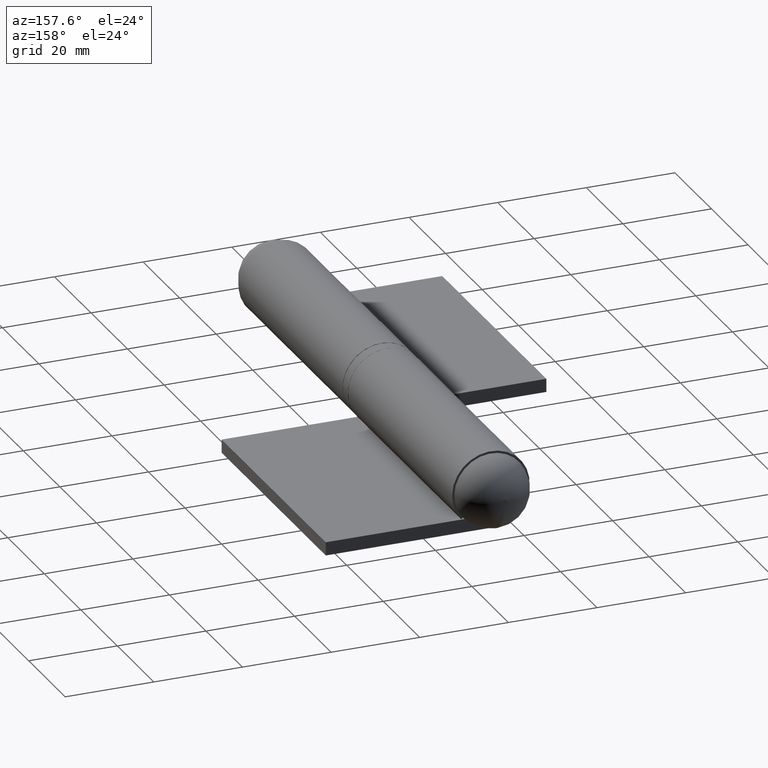
[diagram: clean part render]
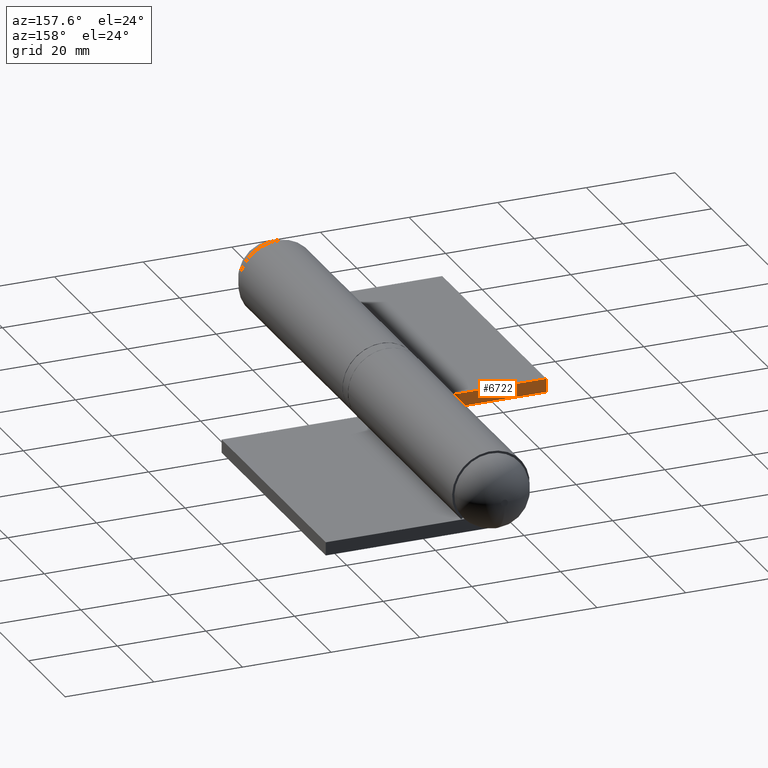
[diagram: same view with one face highlighted and labeled with its STEP entity id]
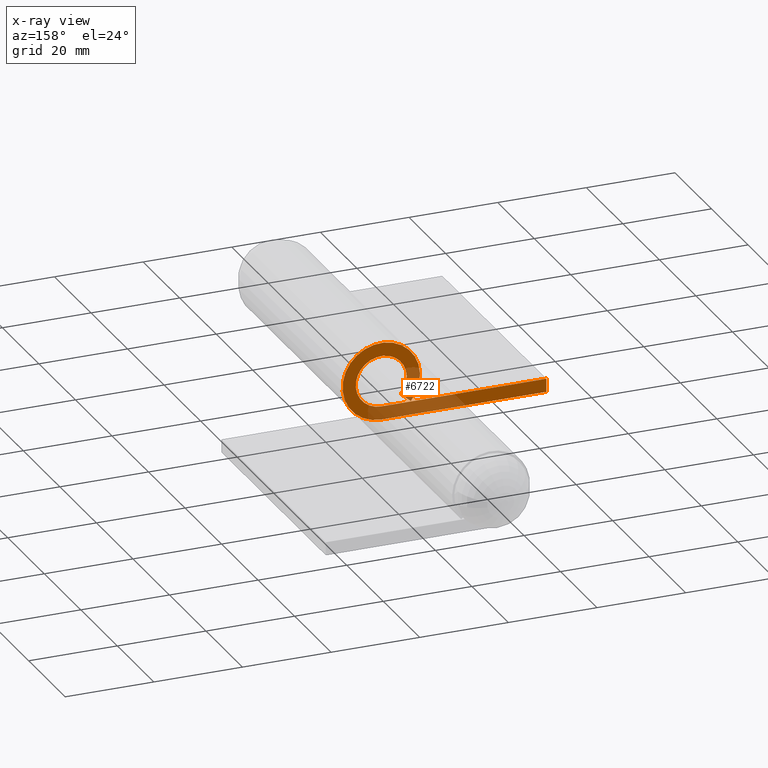
[diagram: x-ray of the same camera — body ghosted, the highlighted face saturated]
A machine part, auxiliary view. The second image highlights one B-rep face of the part: STEP entity #6722.
The next image is the same camera in x-ray: the body ghosted, the highlighted face saturated — about 36% of this face is hidden behind the body in this view.
In plain terms, the highlighted planar face has unit normal (0, -1, 0).
Its self-contained STEP definition (entity closure, byte-faithful):
#19 = CARTESIAN_POINT ( 'NONE',  ( 37.25000000000000000, -28.50000000000000000, -5.750000000000000888 ) ) ;
#136 = EDGE_CURVE ( 'NONE', #8474, #2322, #11101, .T. ) ;
#240 = CARTESIAN_POINT ( 'NONE',  ( 0.000000000000000000, -28.50000000000000000, -5.750000000000000888 ) ) ;
#604 = ORIENTED_EDGE ( 'NONE', *, *, #11133, .F. ) ;
#1010 = CARTESIAN_POINT ( 'NONE',  ( 37.25000000000000000, -28.50000000000000000, 0.000000000000000000 ) ) ;
#1012 = AXIS2_PLACEMENT_3D ( 'NONE', #9586, #4055, #4984 ) ;
#1359 = ORIENTED_EDGE ( 'NONE', *, *, #1768, .F. ) ;
#1442 = VERTEX_POINT ( 'NONE', #19 ) ;
#1687 = CARTESIAN_POINT ( 'NONE',  ( 0.000000000000000000, -28.50000000000000000, 0.000000000000000000 ) ) ;
#1732 = VERTEX_POINT ( 'NONE', #11921 ) ;
#1768 = EDGE_CURVE ( 'NONE', #1442, #10058, #7998, .T. ) ;
#1806 = DIRECTION ( 'NONE',  ( 0.000000000000000000, 1.000000000000000000, -0.000000000000000000 ) ) ;
#2322 = VERTEX_POINT ( 'NONE', #6609 ) ;
#2477 = EDGE_CURVE ( 'NONE', #1732, #10058, #10181, .T. ) ;
#2537 = ORIENTED_EDGE ( 'NONE', *, *, #136, .T. ) ;
#2905 = FACE_OUTER_BOUND ( 'NONE', #7953, .T. ) ;
#3043 = ORIENTED_EDGE ( 'NONE', *, *, #3715, .F. ) ;
#3508 = CARTESIAN_POINT ( 'NONE',  ( 0.000000000000000000, -28.50000000000000000, 0.000000000000000000 ) ) ;
#3715 = EDGE_CURVE ( 'NONE', #1732, #8494, #6677, .T. ) ;
#3940 = CARTESIAN_POINT ( 'NONE',  ( 0.000000000000000000, -28.50000000000000000, -0.000000000000000000 ) ) ;
#4055 = DIRECTION ( 'NONE',  ( 0.000000000000000000, 1.000000000000000000, -0.000000000000000000 ) ) ;
#4373 = CARTESIAN_POINT ( 'NONE',  ( 0.000000000000000000, -28.50000000000000000, -5.750000000000000888 ) ) ;
#4984 = DIRECTION ( 'NONE',  ( 0.000000000000000000, 0.000000000000000000, 1.000000000000000000 ) ) ;
#5062 = VECTOR ( 'NONE', #9543, 1000.000000000000114 ) ;
#5091 = CARTESIAN_POINT ( 'NONE',  ( 0.000000000000000000, -28.50000000000000000, -8.750000000000000000 ) ) ;
#5241 = VECTOR ( 'NONE', #6993, 1000.000000000000000 ) ;
#5248 = DIRECTION ( 'NONE',  ( 0.000000000000000000, 0.000000000000000000, -1.000000000000000000 ) ) ;
#5411 = DIRECTION ( 'NONE',  ( 0.000000000000000000, 1.000000000000000000, -0.000000000000000000 ) ) ;
#5951 = PLANE ( 'NONE',  #1012 ) ;
#6307 = DIRECTION ( 'NONE',  ( 1.000000000000000000, -0.000000000000000000, 0.000000000000000000 ) ) ;
#6415 = CARTESIAN_POINT ( 'NONE',  ( 37.25000000000000000, -28.50000000000000000, -8.750000000000000000 ) ) ;
#6609 = CARTESIAN_POINT ( 'NONE',  ( 4.390579897545960897, -28.50000000000000000, -3.712857142857143522 ) ) ;
#6677 = CIRCLE ( 'NONE', #10903, 8.750000000000000000 ) ;
#6722 = ADVANCED_FACE ( 'NONE', ( #2905 ), #5951, .F. ) ;
#6977 = CARTESIAN_POINT ( 'NONE',  ( 6.681317235396025289, -28.50000000000000000, -5.650000000000000355 ) ) ;
#6993 = DIRECTION ( 'NONE',  ( 1.000000000000000000, -0.000000000000000000, 0.000000000000000000 ) ) ;
#7131 = VECTOR ( 'NONE', #5248, 1000.000000000000000 ) ;
#7399 = ORIENTED_EDGE ( 'NONE', *, *, #2477, .T. ) ;
#7953 = EDGE_LOOP ( 'NONE', ( #2537, #11081, #3043, #7399, #1359, #604 ) ) ;
#7998 = LINE ( 'NONE', #1010, #7131 ) ;
#8474 = VERTEX_POINT ( 'NONE', #240 ) ;
#8494 = VERTEX_POINT ( 'NONE', #6977 ) ;
#8913 = EDGE_CURVE ( 'NONE', #8494, #2322, #10003, .T. ) ;
#9543 = DIRECTION ( 'NONE',  ( -0.7635791126166887599, 0.000000000000000000, 0.6457142857142856851 ) ) ;
#9586 = CARTESIAN_POINT ( 'NONE',  ( 0.000000000000000000, -28.50000000000000000, 0.000000000000000000 ) ) ;
#9918 = DIRECTION ( 'NONE',  ( 0.000000000000000000, 0.000000000000000000, 1.000000000000000000 ) ) ;
#9962 = VECTOR ( 'NONE', #6307, 1000.000000000000000 ) ;
#9975 = DIRECTION ( 'NONE',  ( 0.000000000000000000, 0.000000000000000000, 1.000000000000000000 ) ) ;
#10003 = LINE ( 'NONE', #3940, #5062 ) ;
#10058 = VERTEX_POINT ( 'NONE', #6415 ) ;
#10119 = LINE ( 'NONE', #4373, #9962 ) ;
#10181 = LINE ( 'NONE', #5091, #5241 ) ;
#10903 = AXIS2_PLACEMENT_3D ( 'NONE', #1687, #1806, #9975 ) ;
#11081 = ORIENTED_EDGE ( 'NONE', *, *, #8913, .F. ) ;
#11101 = CIRCLE ( 'NONE', #11906, 5.750000000000000888 ) ;
#11133 = EDGE_CURVE ( 'NONE', #8474, #1442, #10119, .T. ) ;
#11906 = AXIS2_PLACEMENT_3D ( 'NONE', #3508, #5411, #9918 ) ;
#11921 = CARTESIAN_POINT ( 'NONE',  ( 0.000000000000000000, -28.50000000000000000, -8.750000000000000000 ) ) ;